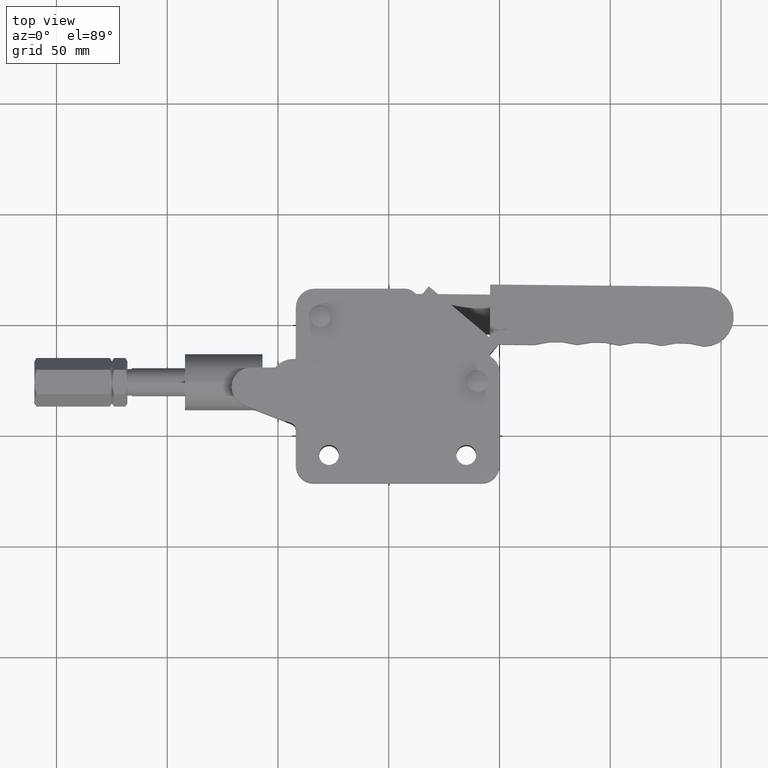
[diagram: clean part render]
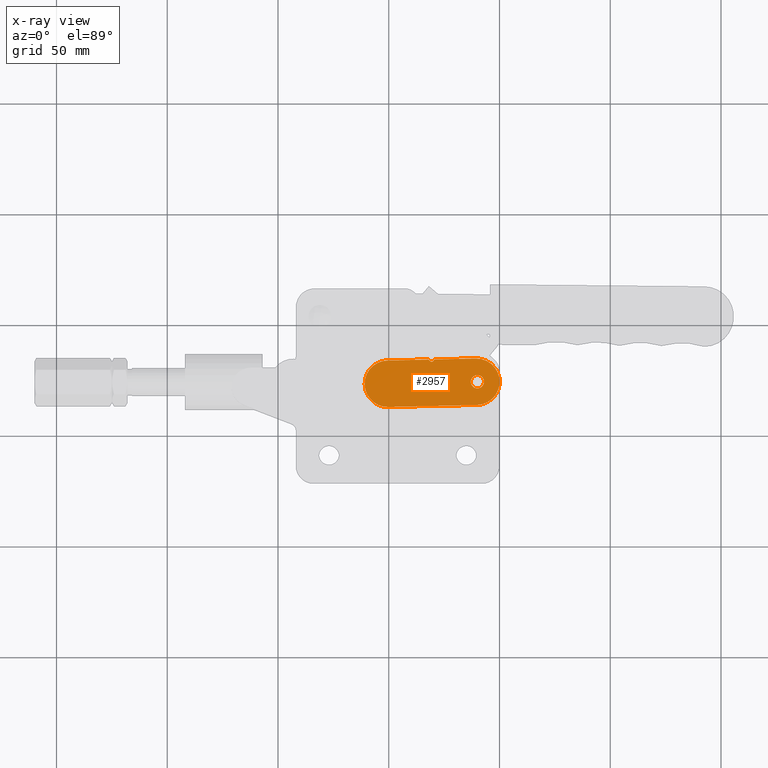
[diagram: x-ray — body ghosted, one internal face saturated and labeled with its STEP entity id]
A machine part, top view, then the same camera in x-ray: the body is ghosted and one INTERNAL B-rep face — a face not visible from any outside direction — is saturated and labeled: STEP entity #2957.
In plain terms, the highlighted planar face has unit normal (0, 0, 1).
Its self-contained STEP definition (entity closure, byte-faithful):
#243 = DIRECTION ( 'NONE',  ( 0.0000000000000000000, 0.0000000000000000000, 1.000000000000000000 ) ) ;
#353 = VECTOR ( 'NONE', #2886, 1000.000000000000100 ) ;
#356 = EDGE_CURVE ( 'NONE', #6214, #7932, #974, .T. ) ;
#408 = DIRECTION ( 'NONE',  ( 0.9999411837266833900, -0.01084569441203951300, 0.0000000000000000000 ) ) ;
#474 = CARTESIAN_POINT ( 'NONE',  ( -50.42969598196759800, 24.43870833896696800, -4.500000000000000000 ) ) ;
#548 = DIRECTION ( 'NONE',  ( 0.9999411837266832800, -0.01084569441203951700, 0.0000000000000000000 ) ) ;
#674 = ORIENTED_EDGE ( 'NONE', *, *, #356, .T. ) ;
#825 = AXIS2_PLACEMENT_3D ( 'NONE', #3931, #243, #4564 ) ;
#917 = DIRECTION ( 'NONE',  ( -0.9999411837266833900, 0.01084569441203719400, 0.0000000000000000000 ) ) ;
#974 = LINE ( 'NONE', #5221, #5722 ) ;
#1021 = CARTESIAN_POINT ( 'NONE',  ( -50.54357577329400900, 13.93932590983679600, -4.500000000000000000 ) ) ;
#1093 = DIRECTION ( 'NONE',  ( 0.9999411837266832800, -0.01084569441203955800, 0.0000000000000000000 ) ) ;
#1103 = VERTEX_POINT ( 'NONE', #4748 ) ;
#1115 = CARTESIAN_POINT ( 'NONE',  ( -28.59588927572437500, 33.70245040236465400, -4.500000000000000000 ) ) ;
#1157 = AXIS2_PLACEMENT_3D ( 'NONE', #2970, #7293, #3578 ) ;
#1232 = CIRCLE ( 'NONE', #7740, 2.999999999999998700 ) ;
#1434 = EDGE_CURVE ( 'NONE', #2895, #1103, #1988, .T. ) ;
#1459 = DIRECTION ( 'NONE',  ( 0.0000000000000000000, 0.0000000000000000000, 1.000000000000000000 ) ) ;
#1466 = FACE_BOUND ( 'NONE', #4321, .T. ) ;
#1550 = CIRCLE ( 'NONE', #1157, 10.50000000000000400 ) ;
#1639 = CARTESIAN_POINT ( 'NONE',  ( -29.45644089591594300, 34.21181364111050300, -4.500000000000000000 ) ) ;
#1686 = PLANE ( 'NONE',  #3581 ) ;
#1737 = DIRECTION ( 'NONE',  ( 0.9999411837266833900, -0.01084569441203719400, 0.0000000000000000000 ) ) ;
#1807 = CARTESIAN_POINT ( 'NONE',  ( -50.54357577329400900, 13.93932590983679600, -4.500000000000000000 ) ) ;
#1988 = CIRCLE ( 'NONE', #4260, 1.000000000000000400 ) ;
#2093 = ORIENTED_EDGE ( 'NONE', *, *, #4764, .F. ) ;
#2153 = CARTESIAN_POINT ( 'NONE',  ( -30.31699251610751500, 34.72117687985635800, -4.500000000000000000 ) ) ;
#2230 = CARTESIAN_POINT ( 'NONE',  ( -31.18838983071112400, 34.23059893487552300, -4.500000000000000000 ) ) ;
#2473 = EDGE_CURVE ( 'NONE', #3480, #6998, #3491, .T. ) ;
#2579 = EDGE_LOOP ( 'NONE', ( #7291, #2928, #6784, #7987, #674, #4366, #4175, #7516, #5627 ) ) ;
#2740 = EDGE_CURVE ( 'NONE', #5584, #3480, #7179, .T. ) ;
#2765 = DIRECTION ( 'NONE',  ( 0.9999411837266833900, -0.01084569441203719400, 0.0000000000000000000 ) ) ;
#2795 = EDGE_CURVE ( 'NONE', #3961, #2895, #3687, .T. ) ;
#2814 = ORIENTED_EDGE ( 'NONE', *, *, #3005, .F. ) ;
#2886 = DIRECTION ( 'NONE',  ( -0.9999411837266832800, 0.01084569441203937100, -0.0000000000000000000 ) ) ;
#2895 = VERTEX_POINT ( 'NONE', #2230 ) ;
#2919 = AXIS2_PLACEMENT_3D ( 'NONE', #2153, #6470, #2765 ) ;
#2928 = ORIENTED_EDGE ( 'NONE', *, *, #2740, .T. ) ;
#2957 = ADVANCED_FACE ( 'NONE', ( #1466, #6017 ), #1686, .T. ) ;
#2970 = CARTESIAN_POINT ( 'NONE',  ( -50.42969598196759800, 24.43870833896696800, -4.500000000000000000 ) ) ;
#3005 = EDGE_CURVE ( 'NONE', #5776, #5965, #7952, .T. ) ;
#3408 = CIRCLE ( 'NONE', #6499, 10.49999999999999800 ) ;
#3480 = VERTEX_POINT ( 'NONE', #1021 ) ;
#3491 = LINE ( 'NONE', #1807, #6811 ) ;
#3578 = DIRECTION ( 'NONE',  ( 0.9999411837266831700, -0.01084569441203950800, 0.0000000000000000000 ) ) ;
#3581 = AXIS2_PLACEMENT_3D ( 'NONE', #474, #4814, #1093 ) ;
#3687 = CIRCLE ( 'NONE', #2919, 1.000000000000000400 ) ;
#3793 = CARTESIAN_POINT ( 'NONE',  ( -10.54592842422667200, 13.50549813335521800, -4.500000000000000000 ) ) ;
#3931 = CARTESIAN_POINT ( 'NONE',  ( -50.42969598196759800, 24.43870833896696800, -4.500000000000000000 ) ) ;
#3961 = VERTEX_POINT ( 'NONE', #1639 ) ;
#4031 = EDGE_CURVE ( 'NONE', #5903, #5584, #1550, .T. ) ;
#4118 = DIRECTION ( 'NONE',  ( 0.0000000000000000000, 0.0000000000000000000, 1.000000000000000000 ) ) ;
#4175 = ORIENTED_EDGE ( 'NONE', *, *, #2795, .T. ) ;
#4215 = CIRCLE ( 'NONE', #6832, 1.000000000000000400 ) ;
#4259 = DIRECTION ( 'NONE',  ( 0.0000000000000000000, 0.0000000000000000000, 1.000000000000000000 ) ) ;
#4260 = AXIS2_PLACEMENT_3D ( 'NONE', #4623, #4539, #917 ) ;
#4321 = EDGE_LOOP ( 'NONE', ( #2814, #2093 ) ) ;
#4366 = ORIENTED_EDGE ( 'NONE', *, *, #6006, .T. ) ;
#4539 = DIRECTION ( 'NONE',  ( 0.0000000000000000000, 0.0000000000000000000, 1.000000000000000000 ) ) ;
#4564 = DIRECTION ( 'NONE',  ( 0.9999411837266831700, -0.01084569441203950800, 0.0000000000000000000 ) ) ;
#4623 = CARTESIAN_POINT ( 'NONE',  ( -32.05978714531472900, 33.74002098989468800, -4.500000000000000000 ) ) ;
#4748 = CARTESIAN_POINT ( 'NONE',  ( -32.04894145090269600, 34.73996217362137900, -4.500000000000000000 ) ) ;
#4764 = EDGE_CURVE ( 'NONE', #5965, #5776, #1232, .T. ) ;
#4814 = DIRECTION ( 'NONE',  ( 0.0000000000000000000, 0.0000000000000000000, 1.000000000000000000 ) ) ;
#5177 = CARTESIAN_POINT ( 'NONE',  ( -9.982075100223257300, 23.99999999999997500, -4.500000000000000000 ) ) ;
#5215 = CARTESIAN_POINT ( 'NONE',  ( -12.98189865140330600, 24.03253708323609300, -4.500000000000000000 ) ) ;
#5221 = CARTESIAN_POINT ( 'NONE',  ( -28.58504358131233400, 34.70239158609133800, -4.500000000000000000 ) ) ;
#5461 = DIRECTION ( 'NONE',  ( 0.0000000000000000000, 0.0000000000000000000, 1.000000000000000000 ) ) ;
#5584 = VERTEX_POINT ( 'NONE', #6150 ) ;
#5627 = ORIENTED_EDGE ( 'NONE', *, *, #7923, .T. ) ;
#5722 = VECTOR ( 'NONE', #7697, 1000.000000000000100 ) ;
#5776 = VERTEX_POINT ( 'NONE', #5215 ) ;
#5781 = DIRECTION ( 'NONE',  ( 0.9999411837266832800, -0.01084569441203951700, 0.0000000000000000000 ) ) ;
#5903 = VERTEX_POINT ( 'NONE', #5934 ) ;
#5934 = CARTESIAN_POINT ( 'NONE',  ( -50.31581619064118600, 34.93809076809714800, -4.500000000000000000 ) ) ;
#5963 = CARTESIAN_POINT ( 'NONE',  ( -50.31581619064118600, 34.93809076809714800, -4.500000000000000000 ) ) ;
#5965 = VERTEX_POINT ( 'NONE', #6012 ) ;
#6006 = EDGE_CURVE ( 'NONE', #7932, #3961, #4215, .T. ) ;
#6012 = CARTESIAN_POINT ( 'NONE',  ( -6.982251549043209800, 23.96746291676385700, -4.500000000000000000 ) ) ;
#6017 = FACE_OUTER_BOUND ( 'NONE', #2579, .T. ) ;
#6080 = AXIS2_PLACEMENT_3D ( 'NONE', #7965, #4259, #548 ) ;
#6131 = DIRECTION ( 'NONE',  ( 0.9999411837266832800, -0.01084569441203942800, 0.0000000000000000000 ) ) ;
#6150 = CARTESIAN_POINT ( 'NONE',  ( -60.92907841109777700, 24.55258813029338300, -4.500000000000000000 ) ) ;
#6214 = VERTEX_POINT ( 'NONE', #6274 ) ;
#6274 = CARTESIAN_POINT ( 'NONE',  ( -10.31816884157384500, 34.50426299161556900, -4.500000000000000000 ) ) ;
#6438 = LINE ( 'NONE', #5963, #353 ) ;
#6459 = EDGE_CURVE ( 'NONE', #6998, #6214, #3408, .T. ) ;
#6470 = DIRECTION ( 'NONE',  ( -0.0000000000000000000, 0.0000000000000000000, -1.000000000000000000 ) ) ;
#6499 = AXIS2_PLACEMENT_3D ( 'NONE', #7811, #4118, #408 ) ;
#6784 = ORIENTED_EDGE ( 'NONE', *, *, #2473, .T. ) ;
#6811 = VECTOR ( 'NONE', #6131, 1000.000000000000100 ) ;
#6832 = AXIS2_PLACEMENT_3D ( 'NONE', #1115, #5461, #1737 ) ;
#6998 = VERTEX_POINT ( 'NONE', #3793 ) ;
#7179 = CIRCLE ( 'NONE', #825, 10.50000000000000400 ) ;
#7291 = ORIENTED_EDGE ( 'NONE', *, *, #4031, .T. ) ;
#7293 = DIRECTION ( 'NONE',  ( 0.0000000000000000000, 0.0000000000000000000, 1.000000000000000000 ) ) ;
#7516 = ORIENTED_EDGE ( 'NONE', *, *, #1434, .T. ) ;
#7697 = DIRECTION ( 'NONE',  ( -0.9999411837266832800, 0.01084569441203946300, -0.0000000000000000000 ) ) ;
#7740 = AXIS2_PLACEMENT_3D ( 'NONE', #5177, #1459, #5781 ) ;
#7811 = CARTESIAN_POINT ( 'NONE',  ( -10.43204863290026200, 24.00488056248539000, -4.500000000000000000 ) ) ;
#7834 = CARTESIAN_POINT ( 'NONE',  ( -28.58504358131233400, 34.70239158609133800, -4.500000000000000000 ) ) ;
#7923 = EDGE_CURVE ( 'NONE', #1103, #5903, #6438, .T. ) ;
#7932 = VERTEX_POINT ( 'NONE', #7834 ) ;
#7952 = CIRCLE ( 'NONE', #6080, 2.999999999999998700 ) ;
#7965 = CARTESIAN_POINT ( 'NONE',  ( -9.982075100223257300, 23.99999999999997500, -4.500000000000000000 ) ) ;
#7987 = ORIENTED_EDGE ( 'NONE', *, *, #6459, .T. ) ;